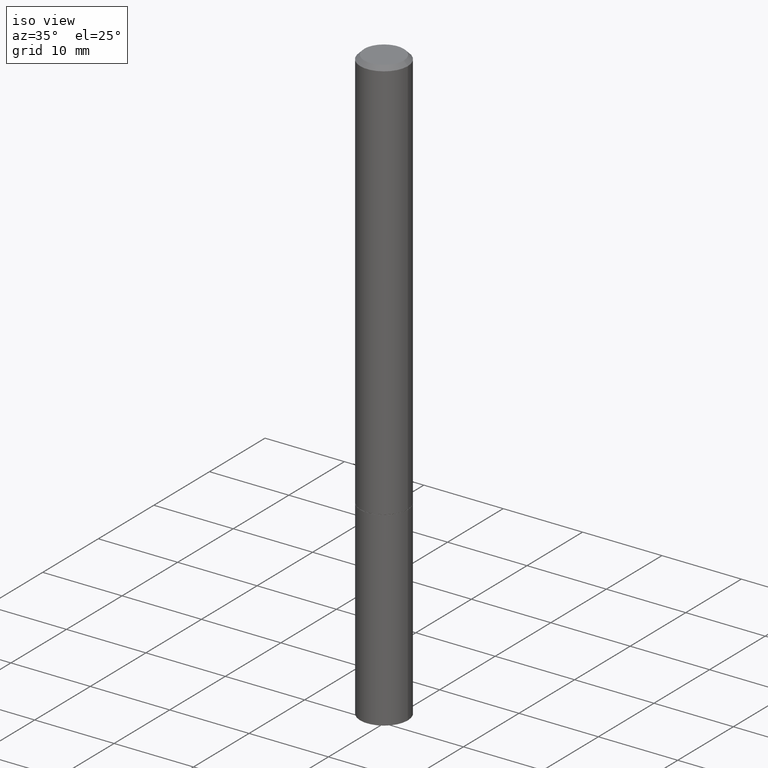
[diagram: clean part render]
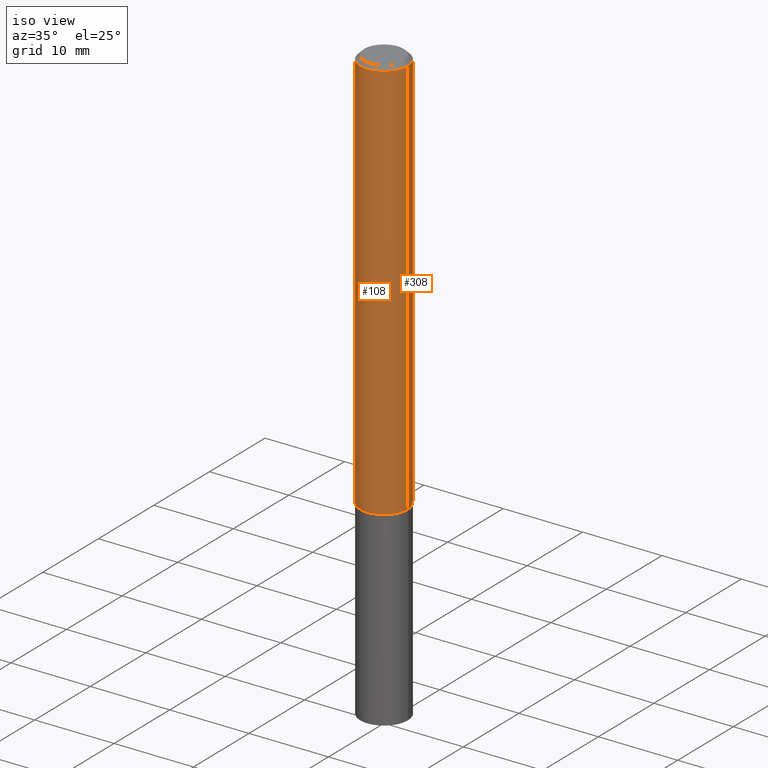
[diagram: same view with one multi-face feature highlighted, each face labeled with its STEP entity id]
A machine part, iso view. The highlighted faces form ONE feature: a constant-radius fillet chain: 2 tangent blend faces with common blend radius 2.9997 mm. The faces share edges in the B-rep.
Their STEP definitions:
[1] entity #308 (Cylinder):
#8 = LINE ( 'NONE', #225, #189 ) ;
#9 = ORIENTED_EDGE ( 'NONE', *, *, #57, .F. ) ;
#24 = FACE_OUTER_BOUND ( 'NONE', #158, .T. ) ;
#32 = AXIS2_PLACEMENT_3D ( 'NONE', #314, #197, #307 ) ;
#34 = EDGE_CURVE ( 'NONE', #253, #231, #151, .T. ) ;
#42 = ORIENTED_EDGE ( 'NONE', *, *, #285, .T. ) ;
#57 = EDGE_CURVE ( 'NONE', #247, #253, #344, .T. ) ;
#59 = CIRCLE ( 'NONE', #131, 0.1181000000000000105 ) ;
#68 = ORIENTED_EDGE ( 'NONE', *, *, #208, .T. ) ;
#73 = CARTESIAN_POINT ( 'NONE',  ( 0.1181000000000000105, -7.831741791159054599E-15, -2.006899999999999462 ) ) ;
#103 = DIRECTION ( 'NONE',  ( 1.000000000000000000, -6.982962677686264344E-15, 0.000000000000000000 ) ) ;
#122 = DIRECTION ( 'NONE',  ( -2.445468806185136877E-29, 3.491481338843145188E-15, 1.000000000000000000 ) ) ;
#131 = AXIS2_PLACEMENT_3D ( 'NONE', #249, #222, #103 ) ;
#140 = VERTEX_POINT ( 'NONE', #217 ) ;
#151 = CIRCLE ( 'NONE', #193, 0.1180999999999997746 ) ;
#158 = EDGE_LOOP ( 'NONE', ( #68, #42, #327, #9 ) ) ;
#169 = CARTESIAN_POINT ( 'NONE',  ( 0.1180999999999997746, -8.800544403136792597E-16, -0.02000000000000003164 ) ) ;
#189 = VECTOR ( 'NONE', #256, 39.37007874015748143 ) ;
#193 = AXIS2_PLACEMENT_3D ( 'NONE', #234, #290, #230 ) ;
#197 = DIRECTION ( 'NONE',  ( -2.445468806185136597E-29, 3.491481338843145583E-15, 1.000000000000000000 ) ) ;
#208 = EDGE_CURVE ( 'NONE', #247, #140, #59, .T. ) ;
#217 = CARTESIAN_POINT ( 'NONE',  ( -0.1181000000000000383, -2.699290791917902676E-15, -2.006899999999999462 ) ) ;
#222 = DIRECTION ( 'NONE',  ( -2.445468806185136597E-29, 3.491481338843145583E-15, 1.000000000000000000 ) ) ;
#225 = CARTESIAN_POINT ( 'NONE',  ( -0.1180999999999998995, 8.391509709326776054E-16, -5.809262341591038879E-30 ) ) ;
#230 = DIRECTION ( 'NONE',  ( 1.000000000000000000, -6.982962677686266711E-15, 0.000000000000000000 ) ) ;
#231 = VERTEX_POINT ( 'NONE', #276 ) ;
#234 = CARTESIAN_POINT ( 'NONE',  ( 4.890937612370280165E-31, -6.982962677686301470E-17, -0.02000000000000003164 ) ) ;
#247 = VERTEX_POINT ( 'NONE', #73 ) ;
#249 = CARTESIAN_POINT ( 'NONE',  ( 4.907811347132949706E-29, -7.007053898924307126E-15, -2.006899999999999462 ) ) ;
#253 = VERTEX_POINT ( 'NONE', #169 ) ;
#256 = DIRECTION ( 'NONE',  ( -2.445468806185136877E-29, 3.491481338843145188E-15, 1.000000000000000000 ) ) ;
#276 = CARTESIAN_POINT ( 'NONE',  ( -0.1180999999999997746, 7.548582654578835839E-16, -0.02000000000000003164 ) ) ;
#285 = EDGE_CURVE ( 'NONE', #140, #231, #8, .T. ) ;
#290 = DIRECTION ( 'NONE',  ( -2.445468806185136597E-29, 3.491481338843145583E-15, 1.000000000000000000 ) ) ;
#307 = DIRECTION ( 'NONE',  ( 1.000000000000000000, -6.982962677686266711E-15, 4.876176775795935232E-29 ) ) ;
#308 = ADVANCED_FACE ( 'NONE', ( #24 ), #365, .T. ) ;
#314 = CARTESIAN_POINT ( 'NONE',  ( 0.000000000000000000, 0.000000000000000000, 0.000000000000000000 ) ) ;
#320 = CARTESIAN_POINT ( 'NONE',  ( 0.1180999999999998995, -8.246878922347473751E-16, 5.758764772214994835E-30 ) ) ;
#327 = ORIENTED_EDGE ( 'NONE', *, *, #34, .F. ) ;
#330 = VECTOR ( 'NONE', #122, 39.37007874015748143 ) ;
#344 = LINE ( 'NONE', #320, #330 ) ;
#365 = CYLINDRICAL_SURFACE ( 'NONE', #32, 0.1180999999999998995 ) ;
[2] entity #108 (Cylinder):
#2 = CYLINDRICAL_SURFACE ( 'NONE', #16, 0.1180999999999998995 ) ;
#3 = AXIS2_PLACEMENT_3D ( 'NONE', #322, #35, #188 ) ;
#4 = CARTESIAN_POINT ( 'NONE',  ( 4.890937612370280165E-31, -6.982962677686301470E-17, -0.02000000000000003164 ) ) ;
#8 = LINE ( 'NONE', #225, #189 ) ;
#16 = AXIS2_PLACEMENT_3D ( 'NONE', #94, #154, #61 ) ;
#35 = DIRECTION ( 'NONE',  ( -2.445468806185136597E-29, 3.491481338843145583E-15, 1.000000000000000000 ) ) ;
#52 = AXIS2_PLACEMENT_3D ( 'NONE', #4, #118, #124 ) ;
#57 = EDGE_CURVE ( 'NONE', #247, #253, #344, .T. ) ;
#61 = DIRECTION ( 'NONE',  ( 1.000000000000000000, -6.982962677686266711E-15, 4.876176775795935232E-29 ) ) ;
#73 = CARTESIAN_POINT ( 'NONE',  ( 0.1181000000000000105, -7.831741791159054599E-15, -2.006899999999999462 ) ) ;
#78 = CIRCLE ( 'NONE', #52, 0.1180999999999997746 ) ;
#83 = CIRCLE ( 'NONE', #3, 0.1181000000000000105 ) ;
#94 = CARTESIAN_POINT ( 'NONE',  ( 0.000000000000000000, 0.000000000000000000, 0.000000000000000000 ) ) ;
#102 = ORIENTED_EDGE ( 'NONE', *, *, #285, .F. ) ;
#106 = ORIENTED_EDGE ( 'NONE', *, *, #119, .T. ) ;
#108 = ADVANCED_FACE ( 'NONE', ( #185 ), #2, .T. ) ;
#118 = DIRECTION ( 'NONE',  ( -2.445468806185136597E-29, 3.491481338843145583E-15, 1.000000000000000000 ) ) ;
#119 = EDGE_CURVE ( 'NONE', #140, #247, #83, .T. ) ;
#122 = DIRECTION ( 'NONE',  ( -2.445468806185136877E-29, 3.491481338843145188E-15, 1.000000000000000000 ) ) ;
#124 = DIRECTION ( 'NONE',  ( 1.000000000000000000, -6.982962677686266711E-15, 0.000000000000000000 ) ) ;
#140 = VERTEX_POINT ( 'NONE', #217 ) ;
#154 = DIRECTION ( 'NONE',  ( -2.445468806185136597E-29, 3.491481338843145583E-15, 1.000000000000000000 ) ) ;
#168 = EDGE_CURVE ( 'NONE', #231, #253, #78, .T. ) ;
#169 = CARTESIAN_POINT ( 'NONE',  ( 0.1180999999999997746, -8.800544403136792597E-16, -0.02000000000000003164 ) ) ;
#185 = FACE_OUTER_BOUND ( 'NONE', #275, .T. ) ;
#188 = DIRECTION ( 'NONE',  ( 1.000000000000000000, -6.982962677686264344E-15, 0.000000000000000000 ) ) ;
#189 = VECTOR ( 'NONE', #256, 39.37007874015748143 ) ;
#217 = CARTESIAN_POINT ( 'NONE',  ( -0.1181000000000000383, -2.699290791917902676E-15, -2.006899999999999462 ) ) ;
#225 = CARTESIAN_POINT ( 'NONE',  ( -0.1180999999999998995, 8.391509709326776054E-16, -5.809262341591038879E-30 ) ) ;
#231 = VERTEX_POINT ( 'NONE', #276 ) ;
#247 = VERTEX_POINT ( 'NONE', #73 ) ;
#253 = VERTEX_POINT ( 'NONE', #169 ) ;
#256 = DIRECTION ( 'NONE',  ( -2.445468806185136877E-29, 3.491481338843145188E-15, 1.000000000000000000 ) ) ;
#275 = EDGE_LOOP ( 'NONE', ( #102, #106, #332, #353 ) ) ;
#276 = CARTESIAN_POINT ( 'NONE',  ( -0.1180999999999997746, 7.548582654578835839E-16, -0.02000000000000003164 ) ) ;
#285 = EDGE_CURVE ( 'NONE', #140, #231, #8, .T. ) ;
#320 = CARTESIAN_POINT ( 'NONE',  ( 0.1180999999999998995, -8.246878922347473751E-16, 5.758764772214994835E-30 ) ) ;
#322 = CARTESIAN_POINT ( 'NONE',  ( 4.907811347132949706E-29, -7.007053898924307126E-15, -2.006899999999999462 ) ) ;
#330 = VECTOR ( 'NONE', #122, 39.37007874015748143 ) ;
#332 = ORIENTED_EDGE ( 'NONE', *, *, #57, .T. ) ;
#344 = LINE ( 'NONE', #320, #330 ) ;
#353 = ORIENTED_EDGE ( 'NONE', *, *, #168, .F. ) ;